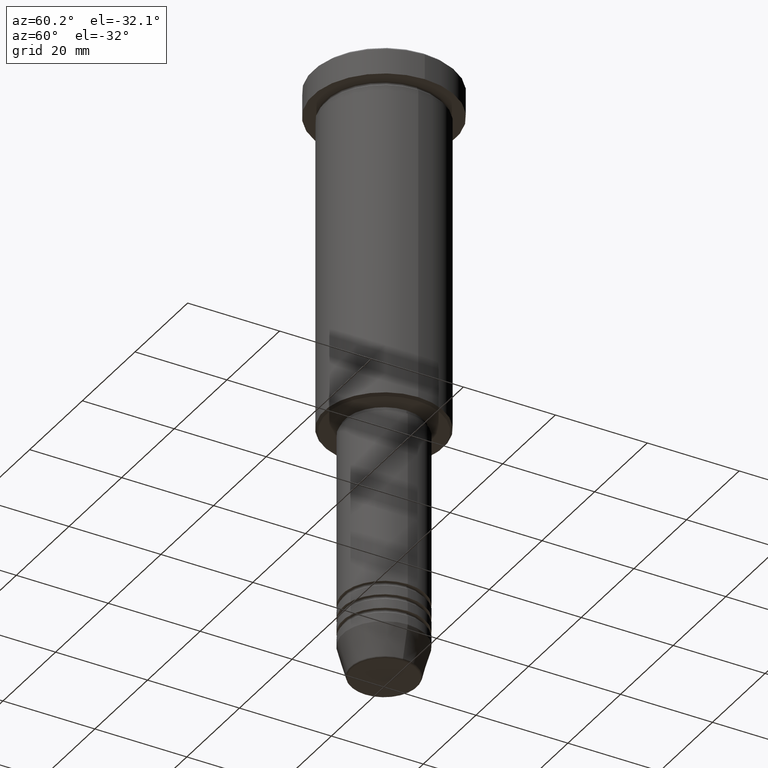
[diagram: clean part render]
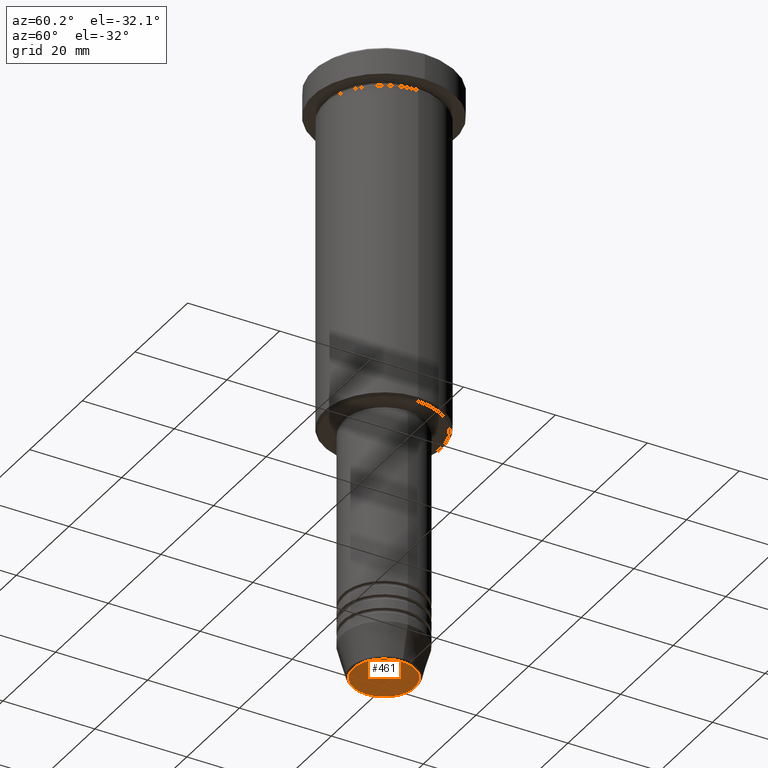
[diagram: same view with one face highlighted and labeled with its STEP entity id]
A machine part, auxiliary view. The second image highlights one B-rep face of the part: STEP entity #461.
In plain terms, the highlighted planar face has unit normal (0, -0, 1).
Its self-contained STEP definition (entity closure, byte-faithful):
#14 = FACE_OUTER_BOUND ( 'NONE', #760, .T. ) ;
#25 = VERTEX_POINT ( 'NONE', #744 ) ;
#137 = CARTESIAN_POINT ( 'NONE',  ( -6.740692158992653837, 8.550696569392679765E-16, -131.0000000000000000 ) ) ;
#149 = DIRECTION ( 'NONE',  ( 0.000000000000000000, 0.000000000000000000, -1.000000000000000000 ) ) ;
#153 = VERTEX_POINT ( 'NONE', #137 ) ;
#191 = CIRCLE ( 'NONE', #417, 6.740692158992653837 ) ;
#319 = ORIENTED_EDGE ( 'NONE', *, *, #342, .T. ) ;
#342 = EDGE_CURVE ( 'NONE', #25, #153, #923, .T. ) ;
#367 = EDGE_CURVE ( 'NONE', #153, #25, #191, .T. ) ;
#368 = DIRECTION ( 'NONE',  ( 0.000000000000000000, -0.000000000000000000, 1.000000000000000000 ) ) ;
#417 = AXIS2_PLACEMENT_3D ( 'NONE', #960, #149, #789 ) ;
#425 = DIRECTION ( 'NONE',  ( 0.000000000000000000, 0.000000000000000000, -1.000000000000000000 ) ) ;
#430 = CARTESIAN_POINT ( 'NONE',  ( 0.000000000000000000, 0.000000000000000000, -131.0000000000000000 ) ) ;
#461 = ADVANCED_FACE ( 'NONE', ( #14 ), #1083, .F. ) ;
#730 = DIRECTION ( 'NONE',  ( 1.000000000000000000, 0.000000000000000000, 0.000000000000000000 ) ) ;
#744 = CARTESIAN_POINT ( 'NONE',  ( 6.740692158992653837, 0.000000000000000000, -131.0000000000000000 ) ) ;
#760 = EDGE_LOOP ( 'NONE', ( #319, #823 ) ) ;
#778 = AXIS2_PLACEMENT_3D ( 'NONE', #430, #425, #1057 ) ;
#789 = DIRECTION ( 'NONE',  ( 1.000000000000000000, 0.000000000000000000, 0.000000000000000000 ) ) ;
#823 = ORIENTED_EDGE ( 'NONE', *, *, #367, .T. ) ;
#894 = CARTESIAN_POINT ( 'NONE',  ( 0.000000000000000000, 0.000000000000000000, -131.0000000000000000 ) ) ;
#923 = CIRCLE ( 'NONE', #778, 6.740692158992653837 ) ;
#960 = CARTESIAN_POINT ( 'NONE',  ( 0.000000000000000000, 0.000000000000000000, -131.0000000000000000 ) ) ;
#1039 = AXIS2_PLACEMENT_3D ( 'NONE', #894, #368, #730 ) ;
#1057 = DIRECTION ( 'NONE',  ( 1.000000000000000000, 0.000000000000000000, 0.000000000000000000 ) ) ;
#1083 = PLANE ( 'NONE',  #1039 ) ;